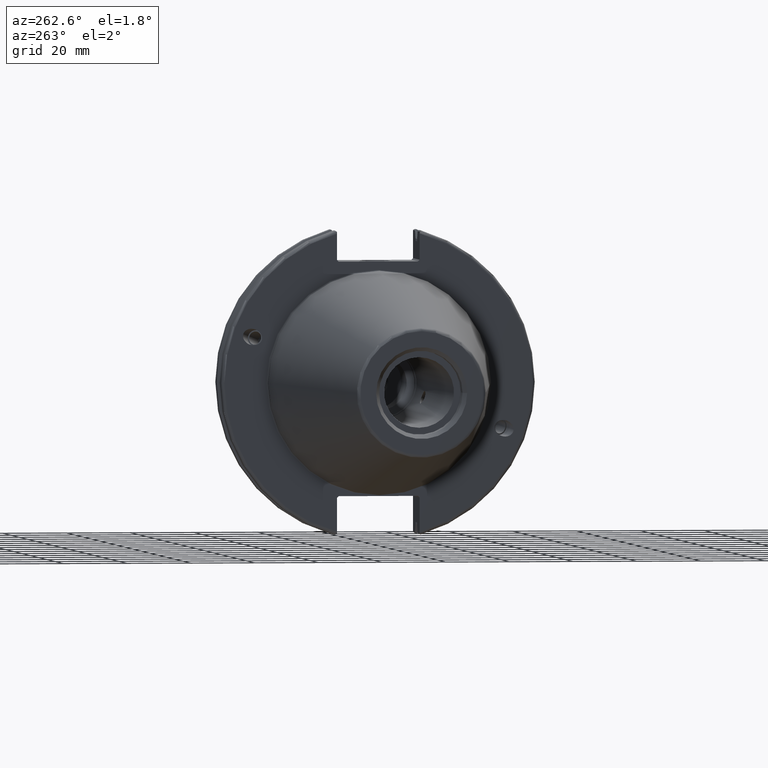
[diagram: clean part render]
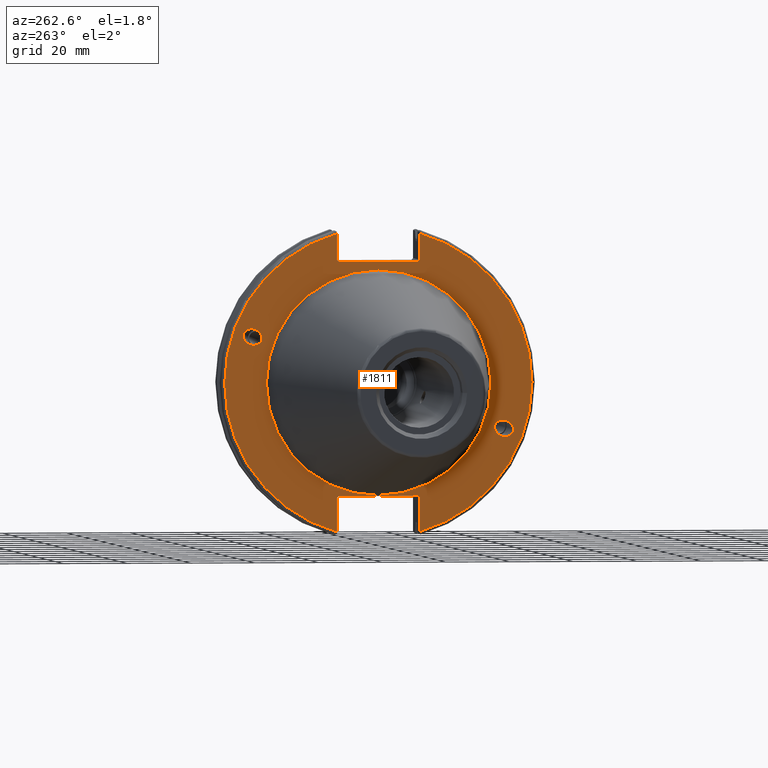
[diagram: same view with one face highlighted and labeled with its STEP entity id]
A machine part, auxiliary view. The second image highlights one B-rep face of the part: STEP entity #1811.
In plain terms, the highlighted planar face has unit normal (-1, 0, 0).
Its self-contained STEP definition (entity closure, byte-faithful):
#61=ELLIPSE('',#2023,3.05193647190364,2.5);
#70=ELLIPSE('',#2046,3.05193647190364,2.5);
#122=FACE_BOUND('',#343,.T.);
#123=FACE_BOUND('',#344,.T.);
#124=FACE_BOUND('',#345,.T.);
#138=PLANE('',#2052);
#222=FACE_OUTER_BOUND('',#342,.T.);
#342=EDGE_LOOP('',(#1472,#1473,#1474,#1475,#1476,#1477,#1478,#1479,#1480,
#1481,#1482,#1483));
#343=EDGE_LOOP('',(#1484));
#344=EDGE_LOOP('',(#1485));
#345=EDGE_LOOP('',(#1486));
#440=LINE('',#3144,#538);
#441=LINE('',#3146,#539);
#442=LINE('',#3148,#540);
#443=LINE('',#3150,#541);
#444=LINE('',#3152,#542);
#445=LINE('',#3156,#543);
#446=LINE('',#3158,#544);
#447=LINE('',#3160,#545);
#448=LINE('',#3162,#546);
#449=LINE('',#3163,#547);
#538=VECTOR('',#2521,10.);
#539=VECTOR('',#2522,10.);
#540=VECTOR('',#2523,10.);
#541=VECTOR('',#2524,10.);
#542=VECTOR('',#2525,10.);
#543=VECTOR('',#2528,10.);
#544=VECTOR('',#2529,10.);
#545=VECTOR('',#2530,10.);
#546=VECTOR('',#2531,10.);
#547=VECTOR('',#2532,10.);
#681=CIRCLE('',#2050,35.125);
#683=CIRCLE('',#2053,48.2125);
#684=CIRCLE('',#2054,48.2125);
#805=VERTEX_POINT('',#3085);
#818=VERTEX_POINT('',#3128);
#821=VERTEX_POINT('',#3135);
#822=VERTEX_POINT('',#3140);
#823=VERTEX_POINT('',#3141);
#824=VERTEX_POINT('',#3143);
#825=VERTEX_POINT('',#3145);
#826=VERTEX_POINT('',#3147);
#827=VERTEX_POINT('',#3149);
#828=VERTEX_POINT('',#3151);
#829=VERTEX_POINT('',#3153);
#830=VERTEX_POINT('',#3155);
#831=VERTEX_POINT('',#3157);
#832=VERTEX_POINT('',#3159);
#833=VERTEX_POINT('',#3161);
#1028=EDGE_CURVE('',#805,#805,#61,.T.);
#1049=EDGE_CURVE('',#818,#818,#70,.T.);
#1052=EDGE_CURVE('',#821,#821,#681,.T.);
#1054=EDGE_CURVE('',#822,#823,#683,.T.);
#1055=EDGE_CURVE('',#822,#824,#440,.T.);
#1056=EDGE_CURVE('',#825,#824,#441,.T.);
#1057=EDGE_CURVE('',#825,#826,#442,.T.);
#1058=EDGE_CURVE('',#827,#826,#443,.T.);
#1059=EDGE_CURVE('',#827,#828,#444,.T.);
#1060=EDGE_CURVE('',#829,#828,#684,.T.);
#1061=EDGE_CURVE('',#829,#830,#445,.T.);
#1062=EDGE_CURVE('',#831,#830,#446,.T.);
#1063=EDGE_CURVE('',#831,#832,#447,.T.);
#1064=EDGE_CURVE('',#833,#832,#448,.T.);
#1065=EDGE_CURVE('',#833,#823,#449,.T.);
#1472=ORIENTED_EDGE('',*,*,#1054,.F.);
#1473=ORIENTED_EDGE('',*,*,#1055,.T.);
#1474=ORIENTED_EDGE('',*,*,#1056,.F.);
#1475=ORIENTED_EDGE('',*,*,#1057,.T.);
#1476=ORIENTED_EDGE('',*,*,#1058,.F.);
#1477=ORIENTED_EDGE('',*,*,#1059,.T.);
#1478=ORIENTED_EDGE('',*,*,#1060,.F.);
#1479=ORIENTED_EDGE('',*,*,#1061,.T.);
#1480=ORIENTED_EDGE('',*,*,#1062,.F.);
#1481=ORIENTED_EDGE('',*,*,#1063,.T.);
#1482=ORIENTED_EDGE('',*,*,#1064,.F.);
#1483=ORIENTED_EDGE('',*,*,#1065,.T.);
#1484=ORIENTED_EDGE('',*,*,#1028,.T.);
#1485=ORIENTED_EDGE('',*,*,#1049,.T.);
#1486=ORIENTED_EDGE('',*,*,#1052,.F.);
#1811=ADVANCED_FACE('',(#222,#122,#123,#124),#138,.T.);
#2023=AXIS2_PLACEMENT_3D('',#3087,#2452,#2453);
#2046=AXIS2_PLACEMENT_3D('',#3130,#2505,#2506);
#2050=AXIS2_PLACEMENT_3D('',#3137,#2513,#2514);
#2052=AXIS2_PLACEMENT_3D('',#3139,#2517,#2518);
#2053=AXIS2_PLACEMENT_3D('',#3142,#2519,#2520);
#2054=AXIS2_PLACEMENT_3D('',#3154,#2526,#2527);
#2452=DIRECTION('center_axis',(1.,0.,0.));
#2453=DIRECTION('ref_axis',(0.,-0.939692620785908,-0.342020143325668));
#2505=DIRECTION('center_axis',(1.,0.,0.));
#2506=DIRECTION('ref_axis',(0.,0.939692620785908,0.342020143325669));
#2513=DIRECTION('center_axis',(-1.,0.,0.));
#2514=DIRECTION('ref_axis',(0.,-1.,1.83697019872103E-16));
#2517=DIRECTION('center_axis',(-1.,0.,0.));
#2518=DIRECTION('ref_axis',(0.,0.,1.));
#2519=DIRECTION('center_axis',(1.,0.,0.));
#2520=DIRECTION('ref_axis',(0.,-1.,1.60812264967664E-16));
#2521=DIRECTION('',(0.,0.,-1.));
#2522=DIRECTION('',(0.,-0.707106781186549,0.707106781186546));
#2523=DIRECTION('',(0.,1.,0.));
#2524=DIRECTION('',(0.,-0.707106781186549,-0.707106781186546));
#2525=DIRECTION('',(0.,0.,1.));
#2526=DIRECTION('center_axis',(1.,0.,0.));
#2527=DIRECTION('ref_axis',(0.,1.,-6.12323399573677E-17));
#2528=DIRECTION('',(0.,0.,1.));
#2529=DIRECTION('',(0.,0.707106781186549,-0.707106781186546));
#2530=DIRECTION('',(0.,-1.,0.));
#2531=DIRECTION('',(0.,0.707106781186549,0.707106781186546));
#2532=DIRECTION('',(0.,0.,-1.));
#3085=CARTESIAN_POINT('',(3.175,-36.5992078912529,-13.3210222701368));
#3087=CARTESIAN_POINT('Origin',(3.175,-39.4670900730082,-14.3648460196781));
#3128=CARTESIAN_POINT('',(3.175,36.5992078912529,13.3210222701368));
#3130=CARTESIAN_POINT('Origin',(3.175,39.4670900730082,14.3648460196781));
#3135=CARTESIAN_POINT('',(3.175,-4.30157188200508E-15,35.125));
#3137=CARTESIAN_POINT('Origin',(3.175,0.,0.));
#3139=CARTESIAN_POINT('Origin',(3.175,49.2125,0.));
#3140=CARTESIAN_POINT('',(3.175,-12.95,46.4407434937254));
#3141=CARTESIAN_POINT('',(3.175,-12.95,-46.4407434937254));
#3142=CARTESIAN_POINT('Origin',(3.175,0.,0.));
#3143=CARTESIAN_POINT('',(3.175,-12.95,38.219));
#3144=CARTESIAN_POINT('',(3.175,-12.95,18.8595));
#3145=CARTESIAN_POINT('',(3.175,-12.45,37.719));
#3146=CARTESIAN_POINT('',(3.175,12.2703750000001,12.998625));
#3147=CARTESIAN_POINT('',(3.175,12.45,37.719));
#3148=CARTESIAN_POINT('',(3.175,24.60625,37.719));
#3149=CARTESIAN_POINT('',(3.175,12.95,38.219));
#3150=CARTESIAN_POINT('',(3.175,12.335875,37.604875));
#3151=CARTESIAN_POINT('',(3.175,12.95,46.4407434937254));
#3152=CARTESIAN_POINT('',(3.175,12.95,18.8595));
#3153=CARTESIAN_POINT('',(3.175,12.95,-46.4407434937254));
#3154=CARTESIAN_POINT('Origin',(3.175,0.,0.));
#3155=CARTESIAN_POINT('',(3.175,12.95,-35.806));
#3156=CARTESIAN_POINT('',(3.175,12.95,-17.653));
#3157=CARTESIAN_POINT('',(3.175,12.45,-35.306));
#3158=CARTESIAN_POINT('',(3.175,12.939125,-35.795125));
#3159=CARTESIAN_POINT('',(3.175,-12.45,-35.306));
#3160=CARTESIAN_POINT('',(3.175,24.60625,-35.306));
#3161=CARTESIAN_POINT('',(3.175,-12.95,-35.806));
#3162=CARTESIAN_POINT('',(3.175,11.6671250000001,-11.188875));
#3163=CARTESIAN_POINT('',(3.175,-12.95,-17.653));